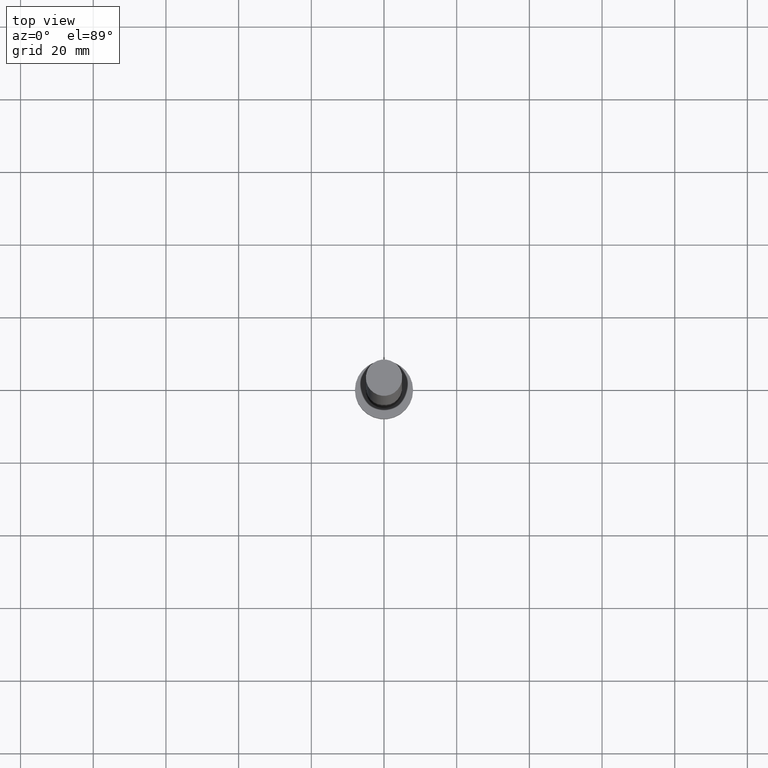
[diagram: clean part render]
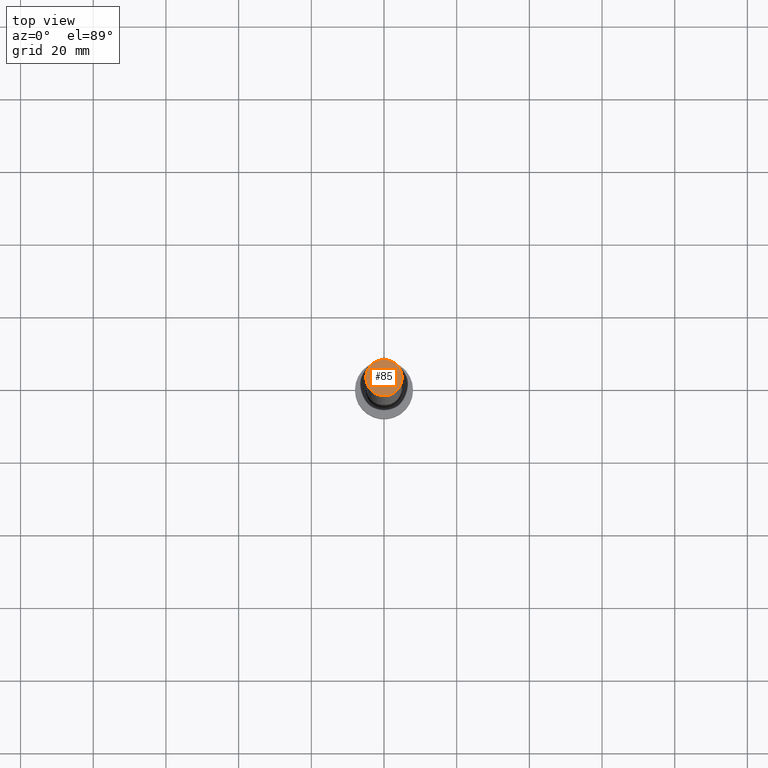
[diagram: same view with one face highlighted and labeled with its STEP entity id]
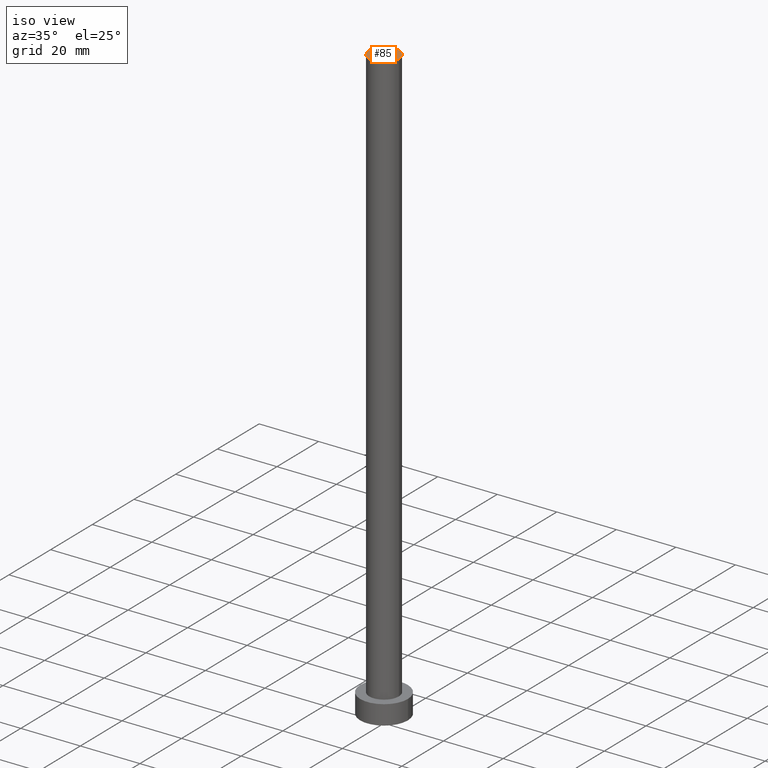
[diagram: same view with one face highlighted and labeled with its STEP entity id]
A machine part, top view. The second image highlights one B-rep face of the part: STEP entity #85.
A second angle (iso view) of the same face is appended — the face is thin or edge-on in the first view.
In plain terms, the highlighted planar face has unit normal (0, 0, 1).
Its self-contained STEP definition (entity closure, byte-faithful):
#2 = VERTEX_POINT ( 'NONE', #132 ) ;
#30 = DIRECTION ( 'NONE',  ( 0.000000000000000000, 0.000000000000000000, 1.000000000000000000 ) ) ;
#36 = EDGE_CURVE ( 'NONE', #2, #41, #255, .T. ) ;
#41 = VERTEX_POINT ( 'NONE', #171 ) ;
#53 = PLANE ( 'NONE',  #60 ) ;
#60 = AXIS2_PLACEMENT_3D ( 'NONE', #133, #30, #177 ) ;
#63 = EDGE_CURVE ( 'NONE', #41, #2, #184, .T. ) ;
#85 = ADVANCED_FACE ( 'NONE', ( #230 ), #53, .T. ) ;
#89 = DIRECTION ( 'NONE',  ( 0.000000000000000000, 0.000000000000000000, 1.000000000000000000 ) ) ;
#106 = DIRECTION ( 'NONE',  ( 1.000000000000000000, 0.000000000000000000, 0.000000000000000000 ) ) ;
#109 = CARTESIAN_POINT ( 'NONE',  ( 0.000000000000000000, 0.000000000000000000, 200.0000000000000000 ) ) ;
#121 = DIRECTION ( 'NONE',  ( 1.000000000000000000, 0.000000000000000000, 0.000000000000000000 ) ) ;
#132 = CARTESIAN_POINT ( 'NONE',  ( 5.000000000000000888, 6.123233995736767268E-16, 200.0000000000000000 ) ) ;
#133 = CARTESIAN_POINT ( 'NONE',  ( 0.000000000000000000, 0.000000000000000000, 200.0000000000000000 ) ) ;
#148 = AXIS2_PLACEMENT_3D ( 'NONE', #109, #192, #121 ) ;
#153 = ORIENTED_EDGE ( 'NONE', *, *, #63, .T. ) ;
#162 = AXIS2_PLACEMENT_3D ( 'NONE', #204, #89, #106 ) ;
#171 = CARTESIAN_POINT ( 'NONE',  ( -5.000000000000000888, 0.000000000000000000, 200.0000000000000000 ) ) ;
#177 = DIRECTION ( 'NONE',  ( 1.000000000000000000, 0.000000000000000000, -0.000000000000000000 ) ) ;
#184 = CIRCLE ( 'NONE', #148, 5.000000000000000888 ) ;
#192 = DIRECTION ( 'NONE',  ( 0.000000000000000000, 0.000000000000000000, 1.000000000000000000 ) ) ;
#204 = CARTESIAN_POINT ( 'NONE',  ( 0.000000000000000000, 0.000000000000000000, 200.0000000000000000 ) ) ;
#210 = EDGE_LOOP ( 'NONE', ( #153, #221 ) ) ;
#221 = ORIENTED_EDGE ( 'NONE', *, *, #36, .T. ) ;
#230 = FACE_OUTER_BOUND ( 'NONE', #210, .T. ) ;
#255 = CIRCLE ( 'NONE', #162, 5.000000000000000888 ) ;